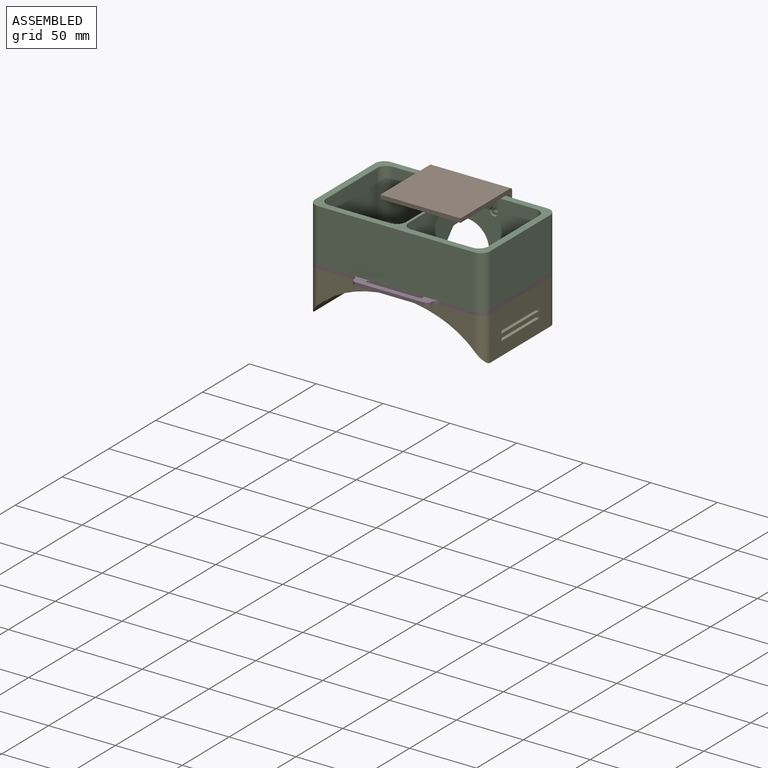
[diagram: assembled view]
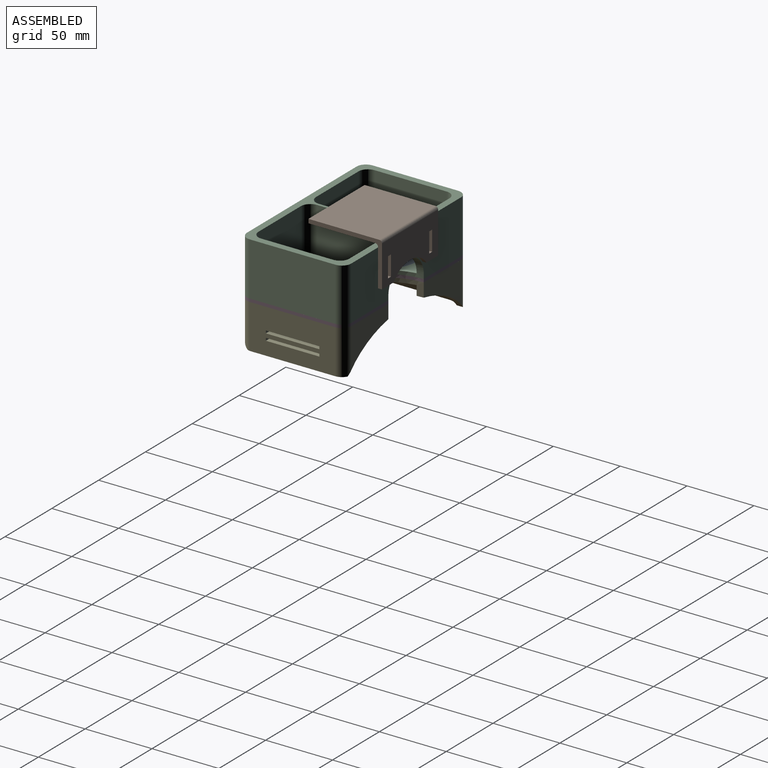
[diagram: assembled view, second angle]
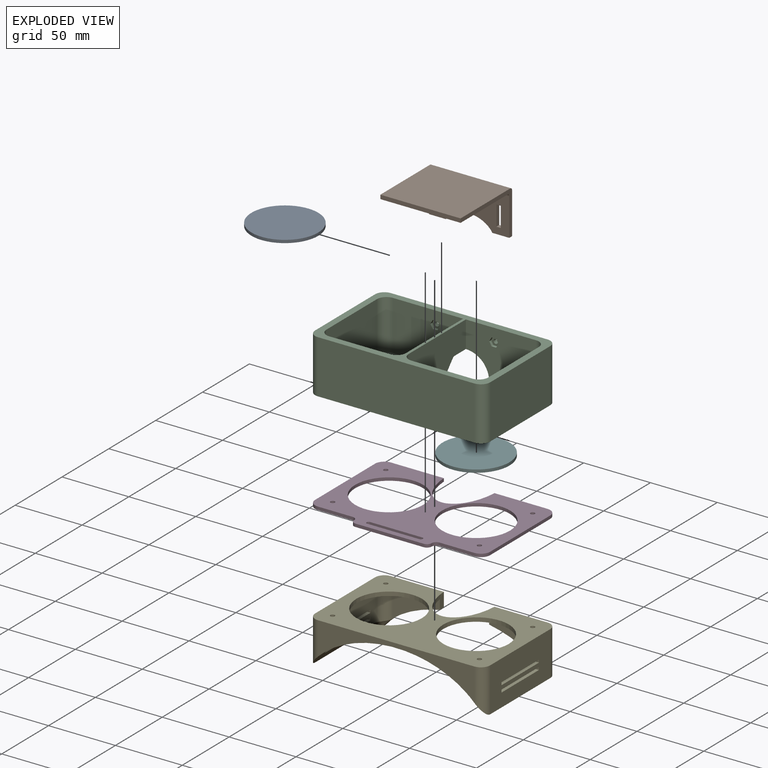
[diagram: exploded view]
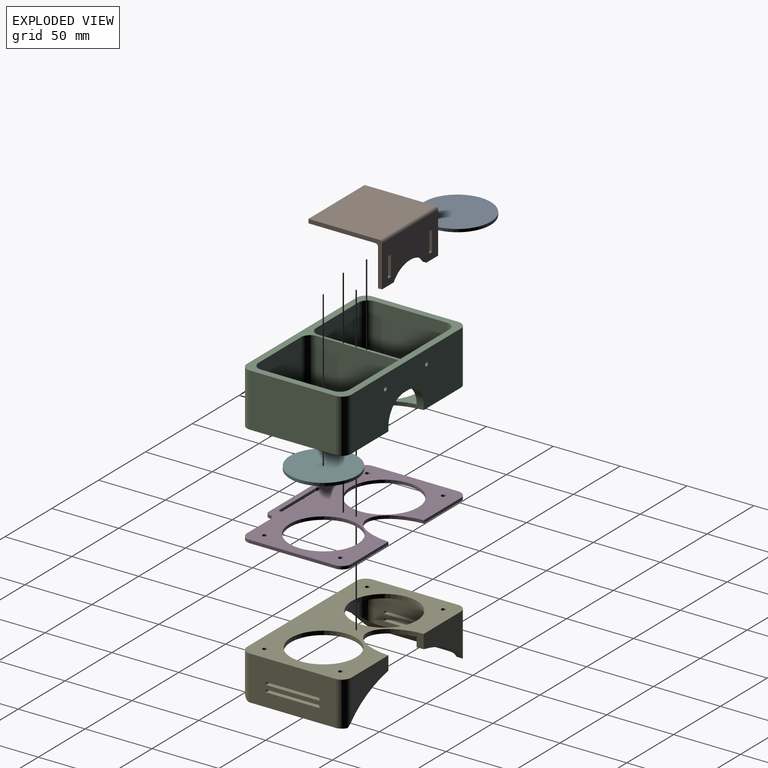
[diagram: exploded view, second angle]
ASSEMBLY  parts=6 mates=5
PART A: 3 faces, bbox 50x50x2.2 mm
  f0: cylinder r=25mm len=50mm, axis (0,0,-1), area 345.6mm2, adj f1,f2
  f1: plane 50x50mm, normal (0,0,1), area 1963.5mm2, adj f0
  f2: plane 50x50mm, normal (0,0,-1), area 1963.5mm2, adj f0
PART B: 20 faces, bbox 60x33x55 mm
  f0: plane 60x31mm, normal (0,0,-1), area 1552.6mm2, adj f1,f5,f7,f8,f9,f10,f11,f12
  f1: plane 12.6x3mm, normal (0,-1,0), area 37.8mm2, adj f0,f2,f8,f17
  f2: plane 60x28mm, normal (0,0,1), area 1372.6mm2, adj f1,f5,f7,f8,f9,f10,f11,f12
  f3: plane 60x3mm, normal (0,0,1), area 180mm2, adj f4,f6,f7,f8
  f4: plane 60x50mm, normal (0,-1,0), area 3000mm2, adj f3,f7,f8,f18
  f5: plane 12.6x3mm, normal (0,-1,0), area 37.8mm2, adj f0,f2,f7,f17
  f6: plane 60x53mm, normal (0,1,0), area 3180mm2, adj f3,f7,f8,f19
  f7: plane 55x33mm, normal (1,0,0), area 255mm2, adj f0,f2,f3,f4,f5,f6,f18,f19
  f8: plane 55x33mm, normal (-1,0,0), area 255mm2, adj f0,f1,f2,f3,f4,f6,f18,f19
  f9: plane 3.2x3mm, normal (0,1,0), area 9.6mm2, adj f0,f2,f10,f12
  f10: plane 15x3mm, normal (1,0,0), area 45mm2, adj f0,f2,f9,f11
  f11: plane 3.2x3mm, normal (0,-1,0), area 9.6mm2, adj f0,f2,f10,f12
  f12: plane 15x3mm, normal (-1,0,0), area 45mm2, adj f0,f2,f9,f11
  f13: plane 3.2x3mm, normal (0,1,0), area 9.6mm2, adj f0,f2,f14,f16
  f14: plane 15x3mm, normal (1,0,0), area 45mm2, adj f0,f2,f13,f15
  f15: plane 3.2x3mm, normal (0,-1,0), area 9.6mm2, adj f0,f2,f14,f16
  f16: plane 15x3mm, normal (-1,0,0), area 45mm2, adj f0,f2,f13,f15
  f17: extruded ~34.8x8.5mm, area 121mm2, adj f0,f1,f2,f5
  f18: cylinder r=2mm len=60mm, axis (-1,0,0), area 188.5mm2, adj f2,f4,f7,f8
  f19: cylinder r=2mm len=60mm, axis (-1,0,0), area 188.5mm2, adj f0,f6,f7,f8
PART C: 58 faces, bbox 132.9x82.4x41.9 mm
  f0: plane 54.44x39.24mm, normal (0,-1,0), area 1688.6mm2, adj f1,f42,f43,f44,f45,f46,f47,f48
  f1: plane 3.46x2mm, normal (0,0,1), area 6.9mm2, adj f0,f2,f42,f46
  f2: plane 6.93x6mm, normal (0,-1,0), area 23.1mm2, adj f1,f3,f42,f43,f44,f45,f46
  f3: cylinder r=1.6mm len=3.2mm, axis (0,1,0), area 30.2mm2, adj f2,f4
  f4: plane 117.77x40.77mm, normal (0,1,0), area 4031.4mm2, adj f3,f5,f30,f36,f37,f41,f47,f48
  f5: cylinder r=1.6mm len=3.2mm, axis (0,1,0), area 30.2mm2, adj f4,f6
  f6: plane 6.93x6mm, normal (0,-1,0), area 23.1mm2, adj f5,f7,f25,f26,f27,f28,f29
  f7: plane 3.46x2mm, normal (0,0,-1), area 6.9mm2, adj f6,f8,f25,f29
  f8: plane 54.44x39.24mm, normal (0,-1,0), area 1688.6mm2, adj f7,f9,f20,f24,f25,f26,f27,f28
  f9: plane 61.28x37.58mm, normal (-1,0,0), area 1927.9mm2, adj f8,f10,f11,f15,f16,f20,f47,f49
  f10: bspline ~3.23x2.68mm, area 7.2mm2, adj f9,f11,f47,f50
  f11: bspline ~14.64x13mm, area 28.6mm2, adj f9,f10,f12,f14,f15,f50
  f12: bspline ~2.35x2.27mm, area 1.7mm2, adj f11,f13,f14,f49,f50
  f13: bspline ~0.98x0.65mm, area 0.1mm2, adj f12,f15
  f14: bspline ~1.03x1.03mm, area 0.4mm2, adj f11,f12,f15
  f15: bspline ~3.01x2.91mm, area 1.6mm2, adj f9,f11,f13,f14,f49
  f16: cylinder r=7mm len=37.3mm, axis (0,0,-1), area 410.1mm2, adj f9,f17,f20,f55
  f17: plane 45.5x37.3mm, normal (0,1,0), area 1697.1mm2, adj f16,f18,f20,f55
  f18: cylinder r=7mm len=37.3mm, axis (0,0,-1), area 410.1mm2, adj f17,f19,f20,f55
  f19: plane 54x37.3mm, normal (1,0,0), area 2014.2mm2, adj f18,f20,f24,f55
  f20: plane 68x59.5mm, normal (0,0,1), area 1802.6mm2, adj f8,f9,f16,f17,f18,f19,f21,f22
  f21: cylinder r=1.6mm len=3.2mm, axis (0,0,-1), area 27.1mm2, adj f20,f37
  f22: cylinder r=1.6mm len=3.2mm, axis (0,0,-1), area 27.1mm2, adj f20,f37
  f23: cylinder r=24.5mm len=49mm, axis (0,0,-1), area 415.6mm2, adj f20,f37
  f24: cylinder r=7mm len=37.3mm, axis (0,0,1), area 410.1mm2, adj f8,f19,f20,f55
  f25: plane 3x2mm, normal (-0.87,0,-0.5), area 6.9mm2, adj f6,f7,f8,f26
  f26: plane 3x2mm, normal (-0.87,0,0.5), area 6.9mm2, adj f6,f8,f25,f27
  f27: plane 3.46x2mm, normal (0,0,1), area 6.9mm2, adj f6,f8,f26,f28
  f28: plane 3x2mm, normal (0.87,0,0.5), area 6.9mm2, adj f6,f8,f27,f29
  f29: plane 3x2mm, normal (0.87,0,-0.5), area 6.9mm2, adj f6,f7,f8,f28
  f30: cylinder r=7mm len=40mm, axis (0,0,1), area 439.8mm2, adj f4,f31,f37,f55
  f31: plane 64x40mm, normal (-1,0,0), area 2560mm2, adj f30,f32,f37,f55
  f32: cylinder r=7mm len=40mm, axis (0,0,-1), area 439.8mm2, adj f31,f33,f37,f55
  f33: plane 117x40mm, normal (0,-1,0), area 4680mm2, adj f32,f34,f37,f55
  f34: cylinder r=7mm len=40mm, axis (0,0,1), area 439.8mm2, adj f33,f35,f37,f55
  f35: plane 64x40mm, normal (1,0,0), area 2560mm2, adj f34,f37,f41,f55
  f36: bspline ~18.12x17mm, area 145.8mm2, adj f4,f8,f47,f49
  f37: plane 131x78mm, normal (0,0,-1), area 5516.2mm2, adj f4,f21,f22,f23,f30,f31,f32,f33
  f38: cylinder r=24.5mm len=49mm, axis (0,0,-1), area 415.6mm2, adj f37,f57
  f39: cylinder r=1.6mm len=3.2mm, axis (0,0,-1), area 27.1mm2, adj f37,f57
  f40: cylinder r=1.6mm len=3.2mm, axis (0,0,-1), area 27.1mm2, adj f37,f57
  f41: cylinder r=7mm len=40mm, axis (0,0,-1), area 439.8mm2, adj f4,f35,f37,f55
  f42: plane 3x2mm, normal (-0.87,0,0.5), area 6.9mm2, adj f0,f1,f2,f43
  f43: plane 3x2mm, normal (-0.87,0,-0.5), area 6.9mm2, adj f0,f2,f42,f44
  f44: plane 3.46x2mm, normal (0,0,-1), area 6.9mm2, adj f0,f2,f43,f45
  f45: plane 3x2mm, normal (0.87,0,-0.5), area 6.9mm2, adj f0,f2,f44,f46
  f46: plane 3x2mm, normal (0.87,0,0.5), area 6.9mm2, adj f0,f1,f2,f45
  f47: extruded ~37.84x29.5mm, area 213.9mm2, adj f0,f4,f8,f9,f10,f20,f36,f37
  f48: bspline ~18.11x17mm, area 145.7mm2, adj f0,f4,f47,f49
  f49: plane 17.53x3.77mm, normal (0,0,-1), area 40.1mm2, adj f0,f4,f8,f9,f12,f15,f36,f48
  f50: plane 61.28x37.58mm, normal (1,0,0), area 1927.8mm2, adj f0,f10,f11,f12,f47,f49,f51,f55
  f51: cylinder r=7mm len=37.3mm, axis (0,0,1), area 410.1mm2, adj f50,f52,f55,f57
  f52: plane 45.5x37.3mm, normal (0,1,0), area 1697.1mm2, adj f51,f53,f55,f57
  f53: cylinder r=7mm len=37.3mm, axis (0,0,1), area 410.1mm2, adj f52,f54,f55,f57
  f54: plane 54x37.3mm, normal (-1,0,0), area 2014.2mm2, adj f53,f55,f56,f57
  f55: plane 131x78mm, normal (0,0,1), area 2147mm2, adj f0,f4,f8,f9,f16,f17,f18,f19
  f56: cylinder r=7mm len=37.3mm, axis (0,0,-1), area 410.1mm2, adj f0,f54,f55,f57
  f57: plane 68x59.5mm, normal (0,0,1), area 1802.6mm2, adj f0,f38,f39,f40,f47,f50,f51,f52
PART D: 28 faces, bbox 131x85x2.3 mm
  f0: plane 131x85mm, normal (0,0,-1), area 5515.9mm2, adj f1,f2,f3,f4,f5,f6,f8,f9
  f1: cylinder r=1.6mm len=3.2mm, axis (0,0,-1), area 23.1mm2, adj f0,f7
  f2: cylinder r=1.6mm len=3.2mm, axis (0,0,-1), area 23.1mm2, adj f0,f7
  f3: cylinder r=1.6mm len=3.2mm, axis (0,0,-1), area 23.1mm2, adj f0,f7
  f4: cylinder r=25.4mm len=50.8mm, axis (0,0,-1), area 367.1mm2, adj f0,f7
  f5: cylinder r=25.4mm len=50.8mm, axis (0,0,-1), area 367.1mm2, adj f0,f7
  f6: cylinder r=1.6mm len=3.2mm, axis (0,0,-1), area 23.1mm2, adj f0,f7
  f7: plane 131x85mm, normal (0,0,1), area 5515.9mm2, adj f1,f2,f3,f4,f5,f6,f8,f9
  f8: extruded ~37.84x29.5mm, area 175.5mm2, adj f0,f7,f11,f12
  f9: plane 26x2.3mm, normal (0,-1,0), area 59.8mm2, adj f0,f7,f21,f24
  f10: plane 64x2.3mm, normal (1,0,0), area 147.2mm2, adj f0,f7,f20,f21
  f11: plane 39.58x2.3mm, normal (0,1,0), area 91mm2, adj f0,f7,f8,f20
  f12: plane 39.58x2.3mm, normal (0,1,0), area 91mm2, adj f0,f7,f8,f18
  f13: plane 64x2.3mm, normal (-1,0,0), area 147.2mm2, adj f0,f7,f18,f19
  f14: plane 26x2.3mm, normal (0,-1,0), area 59.8mm2, adj f0,f7,f19,f22
  f15: plane 51x2.3mm, normal (0,-1,0), area 117.3mm2, adj f0,f7,f23,f25
  f16: plane 39x2.3mm, normal (0,1,0), area 89.7mm2, adj f0,f7,f26,f27
  f17: plane 39x2.3mm, normal (0,-1,0), area 89.7mm2, adj f0,f7,f26,f27
  f18: cylinder r=7mm len=7mm, axis (0,0,1), area 25.3mm2, adj f0,f7,f12,f13
  f19: cylinder r=7mm len=7mm, axis (0,0,-1), area 25.3mm2, adj f0,f7,f13,f14
  f20: cylinder r=7mm len=7mm, axis (0,0,-1), area 25.3mm2, adj f0,f7,f10,f11
  f21: cylinder r=7mm len=7mm, axis (0,0,1), area 25.3mm2, adj f0,f7,f9,f10
  f22: cylinder r=3.5mm len=3.5mm, axis (0,0,1), area 12.6mm2, adj f0,f7,f14,f23
  f23: cylinder r=3.5mm len=3.5mm, axis (0,0,1), area 12.6mm2, adj f0,f7,f15,f22
  f24: cylinder r=3.5mm len=3.5mm, axis (0,0,-1), area 12.6mm2, adj f0,f7,f9,f25
  f25: cylinder r=3.5mm len=3.5mm, axis (0,0,-1), area 12.6mm2, adj f0,f7,f15,f24
  f26: cylinder r=1.5mm len=3mm, axis (0,0,-1), area 10.8mm2, adj f0,f7,f16,f17
  f27: cylinder r=1.5mm len=3mm, axis (0,0,1), area 10.8mm2, adj f0,f7,f16,f17
PART E: 50 faces, bbox 132.2x79.2x35.4 mm
  f0: plane 64x33.09mm, normal (1,0,0), area 1958mm2, adj f8,f20,f22,f24,f25,f40,f41,f42
  f1: plane 64x33.09mm, normal (-1,0,0), area 1958mm2, adj f8,f20,f21,f26,f27,f32,f33,f34
  f2: plane 54.15x24.2mm, normal (-1,0,0), area 1118.6mm2, adj f19,f20,f28,f29,f40,f41,f42,f43
  f3: plane 54.15x24.2mm, normal (1,0,0), area 1118.6mm2, adj f19,f20,f30,f31,f32,f33,f34,f35
  f4: plane 35.08x22.29mm, normal (0,1,0), area 459.1mm2, adj f10,f19,f23,f29
  f5: plane 35.08x22.29mm, normal (0,1,0), area 459.1mm2, adj f9,f19,f23,f30
  f6: plane 39.58x29.79mm, normal (0,-1,0), area 696.4mm2, adj f8,f10,f23,f24
  f7: plane 39.58x29.79mm, normal (0,-1,0), area 696.4mm2, adj f8,f9,f23,f27
  f8: plane 131x78mm, normal (0,0,-1), area 5516.2mm2, adj f0,f1,f6,f7,f12,f13,f14,f15
  f9: extruded ~43.04x22.84mm, area 245.8mm2, adj f5,f7,f21,f23,f27,f48
  f10: extruded ~43.04x22.84mm, area 245.8mm2, adj f4,f6,f22,f23,f24,f49
  f11: plane 107x17.17mm, normal (0,-1,0), area 573.5mm2, adj f19,f20,f28,f31
  f12: plane 117x24.59mm, normal (0,1,0), area 1117.4mm2, adj f8,f20,f25,f26
  f13: cylinder r=24.5mm len=49mm, axis (0,0,-1), area 461.8mm2, adj f8,f19
  f14: cylinder r=1.6mm len=3.2mm, axis (0,0,-1), area 30.2mm2, adj f8,f19
  f15: cylinder r=1.6mm len=3.2mm, axis (0,0,-1), area 30.2mm2, adj f8,f19
  f16: cylinder r=1.6mm len=3.2mm, axis (0,0,-1), area 30.2mm2, adj f8,f19
  f17: cylinder r=1.6mm len=3.2mm, axis (0,0,-1), area 30.2mm2, adj f8,f19
  f18: cylinder r=24.5mm len=49mm, axis (0,0,-1), area 461.8mm2, adj f8,f19
  f19: plane 121x68mm, normal (0,0,1), area 3713.2mm2, adj f2,f3,f4,f5,f11,f13,f14,f15
  f20: extruded ~131x63.69mm, area 1691.3mm2, adj f0,f1,f2,f3,f11,f12,f25,f26
  f21: plane 14.87x5.27mm, normal (0,0,1), area 22.1mm2, adj f1,f9,f27,f48
  f22: plane 14.88x5.27mm, normal (0,0,1), area 22.1mm2, adj f0,f10,f24,f49
  f23: extruded ~37.84x29.5mm, area 302.3mm2, adj f4,f5,f6,f7,f8,f9,f10,f19
  f24: cylinder r=7mm len=33.09mm, axis (0,0,1), area 358.8mm2, adj f0,f6,f8,f10,f22
  f25: cylinder r=7mm len=33.09mm, axis (0,0,-1), area 317.1mm2, adj f0,f8,f12,f20
  f26: cylinder r=7mm len=33.09mm, axis (0,0,1), area 317.1mm2, adj f1,f8,f12,f20
  f27: cylinder r=7mm len=33.09mm, axis (0,0,-1), area 358.8mm2, adj f1,f7,f8,f9,f21
  f28: cylinder r=7mm len=23.67mm, axis (0,0,-1), area 224.5mm2, adj f2,f11,f19,f20
  f29: cylinder r=7mm len=24.06mm, axis (0,0,1), area 254.8mm2, adj f2,f4,f19,f49
  f30: cylinder r=7mm len=24.06mm, axis (0,0,-1), area 254.8mm2, adj f3,f5,f19,f48
  f31: cylinder r=7mm len=23.67mm, axis (0,0,1), area 224.5mm2, adj f3,f11,f19,f20
  f32: plane 40x5mm, normal (0,0,1), area 200mm2, adj f1,f3,f33,f35
  f33: plane 5x2mm, normal (0,1,0), area 10mm2, adj f1,f3,f32,f34
  f34: plane 40x5mm, normal (0,0,-1), area 200mm2, adj f1,f3,f33,f35
  f35: plane 5x2mm, normal (0,-1,0), area 10mm2, adj f1,f3,f32,f34
  f36: plane 5x2mm, normal (0,1,0), area 10mm2, adj f1,f3,f37,f38
  f37: plane 40x5mm, normal (0,0,-1), area 200mm2, adj f1,f3,f36,f39
  f38: plane 40x5mm, normal (0,0,1), area 200mm2, adj f1,f3,f36,f39
  f39: plane 5x2mm, normal (0,-1,0), area 10mm2, adj f1,f3,f37,f38
  f40: plane 5x2mm, normal (0,-1,0), area 10mm2, adj f0,f2,f41,f43
  f41: plane 40x5mm, normal (0,0,-1), area 200mm2, adj f0,f2,f40,f42
  f42: plane 5x2mm, normal (0,1,0), area 10mm2, adj f0,f2,f41,f43
  f43: plane 40x5mm, normal (0,0,1), area 200mm2, adj f0,f2,f40,f42
  f44: plane 5x2mm, normal (0,-1,0), area 10mm2, adj f0,f2,f45,f46
  f45: plane 40x5mm, normal (0,0,1), area 200mm2, adj f0,f2,f44,f47
  f46: plane 40x5mm, normal (0,0,-1), area 200mm2, adj f0,f2,f44,f47
  f47: plane 5x2mm, normal (0,1,0), area 10mm2, adj f0,f2,f45,f46
  f48: bspline ~12x11.32mm, area 74.8mm2, adj f3,f9,f20,f21,f30
  f49: bspline ~12x11.32mm, area 74.8mm2, adj f2,f10,f20,f22,f29
PART F: same geometry as A
PLACE A t=(-32.5,46,-2.2)mm
PLACE B rot(axis=(1,0,0),90deg) t=(0,60.5,28.9)mm
PLACE C t=(0,46,0)mm
PLACE D t=(0,46,-2.3)mm
PLACE E rot(axis=(-1,0,0),180deg) t=(0,46,-2.3)mm
PLACE F t=(32.5,46,-2.2)mm
MATE revolute A.f0 <-> D.f5  axis (0,0,1) through (-32.5,46,0)mm
MATE slider C.f55 <-> B.f4  axis (0,0,1) through (0,85,40)mm
MATE revolute F.f0 <-> D.f4  axis (0,0,1) through (32.5,46,0)mm
MATE fastened D.f6 <-> C.f39  axis (0,0,1) through (54.9,74.4,0)mm
MATE fastened D.f6 <-> E.f16  axis (0,0,-1) through (54.9,74.4,-2.3)mm
